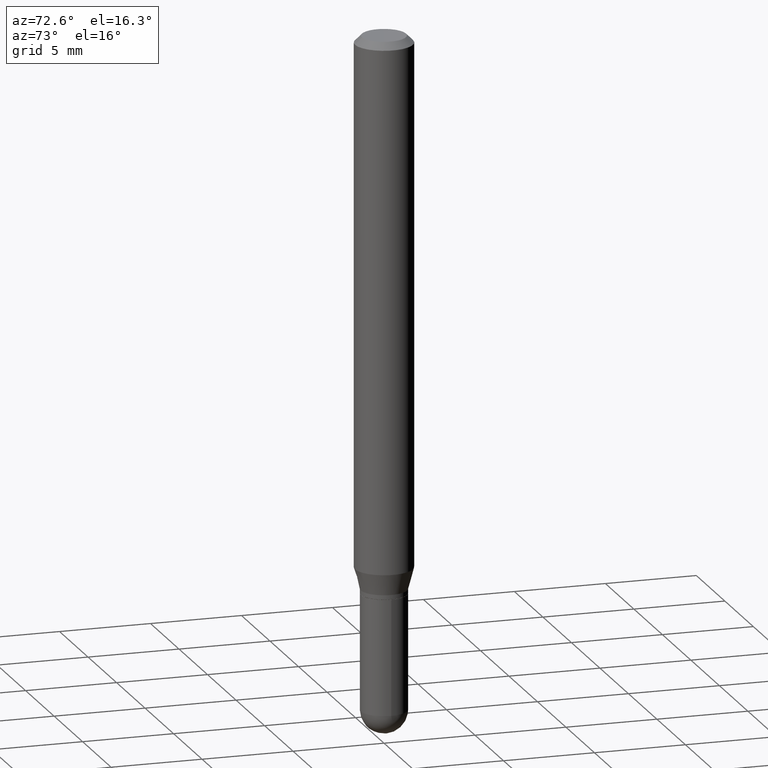
[diagram: clean part render]
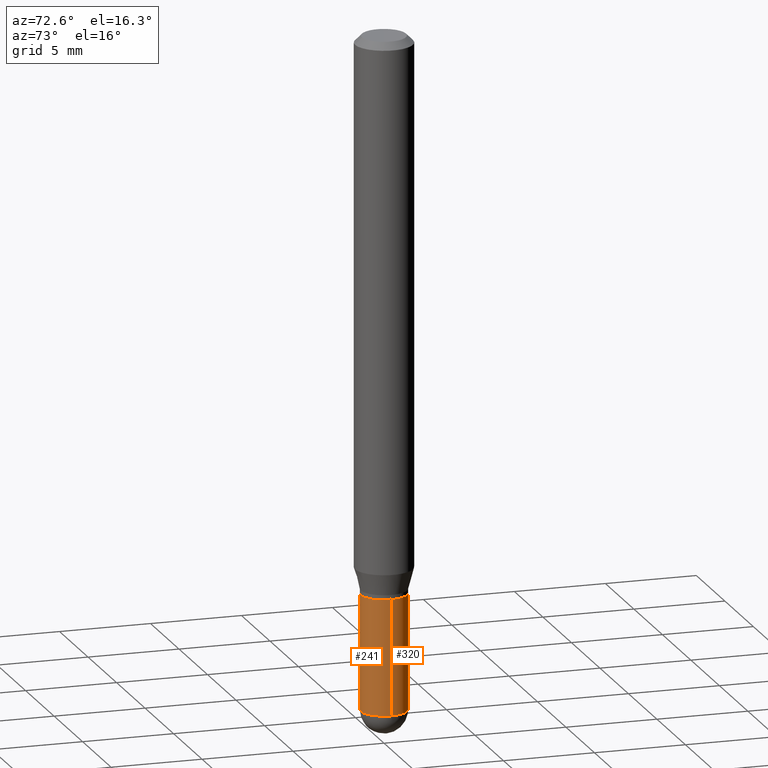
[diagram: same view with one multi-face feature highlighted, each face labeled with its STEP entity id]
A machine part, auxiliary view. The highlighted faces form ONE feature: a constant-radius fillet chain: 2 tangent blend faces with common blend radius 1.27 mm. The faces share edges in the B-rep.
Their STEP definitions:
[1] entity #241 (Cylinder):
#2 = CARTESIAN_POINT ( 'NONE',  ( 0.000000000000000000, 0.000000000000000000, 0.000000000000000000 ) ) ;
#20 = CARTESIAN_POINT ( 'NONE',  ( -3.491481338842782805E-16, -0.05000000000000513756, -1.449999999999999734 ) ) ;
#21 = EDGE_LOOP ( 'NONE', ( #497, #232, #249, #131, #335 ) ) ;
#38 = DIRECTION ( 'NONE',  ( 1.000000000000000000, -6.982962677686265922E-15, 4.876176775795936353E-29 ) ) ;
#71 = VERTEX_POINT ( 'NONE', #288 ) ;
#84 = CARTESIAN_POINT ( 'NONE',  ( 0.04999999999999999584, -3.491481338843132862E-16, 2.438088387897967896E-30 ) ) ;
#90 = DIRECTION ( 'NONE',  ( 1.000000000000000000, -6.982962677686274599E-15, 0.000000000000000000 ) ) ;
#98 = EDGE_CURVE ( 'NONE', #437, #496, #280, .T. ) ;
#131 = ORIENTED_EDGE ( 'NONE', *, *, #98, .T. ) ;
#132 = CARTESIAN_POINT ( 'NONE',  ( 0.05000000000000000278, -4.538925740496089139E-15, -1.200000000000000178 ) ) ;
#136 = CIRCLE ( 'NONE', #386, 0.05000000000000000278 ) ;
#150 = LINE ( 'NONE', #237, #401 ) ;
#168 = EDGE_CURVE ( 'NONE', #71, #496, #136, .T. ) ;
#169 = VERTEX_POINT ( 'NONE', #20 ) ;
#175 = EDGE_CURVE ( 'NONE', #231, #169, #511, .T. ) ;
#178 = AXIS2_PLACEMENT_3D ( 'NONE', #2, #389, #38 ) ;
#194 = FACE_OUTER_BOUND ( 'NONE', #21, .T. ) ;
#198 = DIRECTION ( 'NONE',  ( -2.445468806185136597E-29, 3.491481338843145583E-15, 1.000000000000000000 ) ) ;
#200 = DIRECTION ( 'NONE',  ( 1.000000000000000000, -6.982962677686275388E-15, 0.000000000000000000 ) ) ;
#214 = DIRECTION ( 'NONE',  ( 1.000000000000000000, -6.982962677686275388E-15, 0.000000000000000000 ) ) ;
#231 = VERTEX_POINT ( 'NONE', #407 ) ;
#232 = ORIENTED_EDGE ( 'NONE', *, *, #175, .T. ) ;
#237 = CARTESIAN_POINT ( 'NONE',  ( -0.04999999999999999584, 3.552713678800500634E-16, -2.459467545127452961E-30 ) ) ;
#241 = ADVANCED_FACE ( 'NONE', ( #194 ), #302, .T. ) ;
#249 = ORIENTED_EDGE ( 'NONE', *, *, #281, .T. ) ;
#250 = DIRECTION ( 'NONE',  ( -2.445468806185136877E-29, 3.491481338843145188E-15, 1.000000000000000000 ) ) ;
#259 = CARTESIAN_POINT ( 'NONE',  ( 3.545929768968448850E-29, -5.062647941322561509E-15, -1.450000000000000178 ) ) ;
#274 = DIRECTION ( 'NONE',  ( -2.445468806185136877E-29, 3.491481338843145188E-15, 1.000000000000000000 ) ) ;
#280 = LINE ( 'NONE', #84, #472 ) ;
#281 = EDGE_CURVE ( 'NONE', #169, #437, #319, .T. ) ;
#288 = CARTESIAN_POINT ( 'NONE',  ( -0.05000000000000000278, -4.270941406087117853E-15, -1.200000000000000178 ) ) ;
#289 = EDGE_CURVE ( 'NONE', #231, #71, #150, .T. ) ;
#302 = CYLINDRICAL_SURFACE ( 'NONE', #178, 0.04999999999999999584 ) ;
#319 = CIRCLE ( 'NONE', #465, 0.04999999999999999584 ) ;
#335 = ORIENTED_EDGE ( 'NONE', *, *, #168, .F. ) ;
#336 = CARTESIAN_POINT ( 'NONE',  ( 0.04999999999999999584, -4.975360907851482386E-15, -1.450000000000000178 ) ) ;
#386 = AXIS2_PLACEMENT_3D ( 'NONE', #482, #444, #90 ) ;
#389 = DIRECTION ( 'NONE',  ( -2.445468806185136597E-29, 3.491481338843145583E-15, 1.000000000000000000 ) ) ;
#392 = AXIS2_PLACEMENT_3D ( 'NONE', #259, #453, #214 ) ;
#401 = VECTOR ( 'NONE', #274, 39.37007874015748143 ) ;
#407 = CARTESIAN_POINT ( 'NONE',  ( -0.04999999999999999584, -4.270941406087117853E-15, -1.450000000000000178 ) ) ;
#437 = VERTEX_POINT ( 'NONE', #336 ) ;
#444 = DIRECTION ( 'NONE',  ( -2.445468806185136597E-29, 3.491481338843145583E-15, 1.000000000000000000 ) ) ;
#453 = DIRECTION ( 'NONE',  ( -2.445468806185136597E-29, 3.491481338843145583E-15, 1.000000000000000000 ) ) ;
#465 = AXIS2_PLACEMENT_3D ( 'NONE', #468, #198, #200 ) ;
#468 = CARTESIAN_POINT ( 'NONE',  ( 3.545929768968448850E-29, -5.062647941322561509E-15, -1.450000000000000178 ) ) ;
#472 = VECTOR ( 'NONE', #250, 39.37007874015748143 ) ;
#482 = CARTESIAN_POINT ( 'NONE',  ( 2.934562567422164701E-29, -4.189777606611775804E-15, -1.200000000000000178 ) ) ;
#496 = VERTEX_POINT ( 'NONE', #132 ) ;
#497 = ORIENTED_EDGE ( 'NONE', *, *, #289, .F. ) ;
#511 = CIRCLE ( 'NONE', #392, 0.04999999999999999584 ) ;
[2] entity #320 (Cylinder):
#3 = CARTESIAN_POINT ( 'NONE',  ( 3.545929768968448850E-29, -5.062647941322561509E-15, -1.450000000000000178 ) ) ;
#7 = DIRECTION ( 'NONE',  ( 1.000000000000000000, -6.982962677686275388E-15, 0.000000000000000000 ) ) ;
#22 = CARTESIAN_POINT ( 'NONE',  ( 2.934562567422164701E-29, -4.189777606611775804E-15, -1.200000000000000178 ) ) ;
#24 = EDGE_CURVE ( 'NONE', #496, #71, #359, .T. ) ;
#26 = AXIS2_PLACEMENT_3D ( 'NONE', #315, #323, #7 ) ;
#71 = VERTEX_POINT ( 'NONE', #288 ) ;
#84 = CARTESIAN_POINT ( 'NONE',  ( 0.04999999999999999584, -3.491481338843132862E-16, 2.438088387897967896E-30 ) ) ;
#95 = AXIS2_PLACEMENT_3D ( 'NONE', #3, #473, #203 ) ;
#98 = EDGE_CURVE ( 'NONE', #437, #496, #280, .T. ) ;
#119 = FACE_OUTER_BOUND ( 'NONE', #225, .T. ) ;
#126 = ORIENTED_EDGE ( 'NONE', *, *, #289, .T. ) ;
#132 = CARTESIAN_POINT ( 'NONE',  ( 0.05000000000000000278, -4.538925740496089139E-15, -1.200000000000000178 ) ) ;
#140 = CARTESIAN_POINT ( 'NONE',  ( 3.552713678800859565E-16, 0.04999999999999501371, -1.450000000000000400 ) ) ;
#142 = AXIS2_PLACEMENT_3D ( 'NONE', #22, #184, #145 ) ;
#145 = DIRECTION ( 'NONE',  ( 1.000000000000000000, -6.982962677686274599E-15, 0.000000000000000000 ) ) ;
#150 = LINE ( 'NONE', #237, #401 ) ;
#157 = ORIENTED_EDGE ( 'NONE', *, *, #24, .F. ) ;
#184 = DIRECTION ( 'NONE',  ( -2.445468806185136597E-29, 3.491481338843145583E-15, 1.000000000000000000 ) ) ;
#203 = DIRECTION ( 'NONE',  ( 1.000000000000000000, -6.982962677686275388E-15, 0.000000000000000000 ) ) ;
#205 = DIRECTION ( 'NONE',  ( -2.445468806185136597E-29, 3.491481338843145583E-15, 1.000000000000000000 ) ) ;
#225 = EDGE_LOOP ( 'NONE', ( #388, #126, #157, #398, #337 ) ) ;
#231 = VERTEX_POINT ( 'NONE', #407 ) ;
#237 = CARTESIAN_POINT ( 'NONE',  ( -0.04999999999999999584, 3.552713678800500634E-16, -2.459467545127452961E-30 ) ) ;
#243 = CARTESIAN_POINT ( 'NONE',  ( 0.000000000000000000, 0.000000000000000000, 0.000000000000000000 ) ) ;
#250 = DIRECTION ( 'NONE',  ( -2.445468806185136877E-29, 3.491481338843145188E-15, 1.000000000000000000 ) ) ;
#252 = EDGE_CURVE ( 'NONE', #437, #500, #292, .T. ) ;
#274 = DIRECTION ( 'NONE',  ( -2.445468806185136877E-29, 3.491481338843145188E-15, 1.000000000000000000 ) ) ;
#280 = LINE ( 'NONE', #84, #472 ) ;
#288 = CARTESIAN_POINT ( 'NONE',  ( -0.05000000000000000278, -4.270941406087117853E-15, -1.200000000000000178 ) ) ;
#289 = EDGE_CURVE ( 'NONE', #231, #71, #150, .T. ) ;
#292 = CIRCLE ( 'NONE', #26, 0.04999999999999999584 ) ;
#295 = EDGE_CURVE ( 'NONE', #500, #231, #377, .T. ) ;
#309 = CYLINDRICAL_SURFACE ( 'NONE', #360, 0.04999999999999999584 ) ;
#315 = CARTESIAN_POINT ( 'NONE',  ( 3.545929768968448850E-29, -5.062647941322561509E-15, -1.450000000000000178 ) ) ;
#320 = ADVANCED_FACE ( 'NONE', ( #119 ), #309, .T. ) ;
#323 = DIRECTION ( 'NONE',  ( -2.445468806185136597E-29, 3.491481338843145583E-15, 1.000000000000000000 ) ) ;
#336 = CARTESIAN_POINT ( 'NONE',  ( 0.04999999999999999584, -4.975360907851482386E-15, -1.450000000000000178 ) ) ;
#337 = ORIENTED_EDGE ( 'NONE', *, *, #252, .T. ) ;
#359 = CIRCLE ( 'NONE', #142, 0.05000000000000000278 ) ;
#360 = AXIS2_PLACEMENT_3D ( 'NONE', #243, #205, #390 ) ;
#377 = CIRCLE ( 'NONE', #95, 0.04999999999999999584 ) ;
#388 = ORIENTED_EDGE ( 'NONE', *, *, #295, .T. ) ;
#390 = DIRECTION ( 'NONE',  ( 1.000000000000000000, -6.982962677686265922E-15, 4.876176775795936353E-29 ) ) ;
#398 = ORIENTED_EDGE ( 'NONE', *, *, #98, .F. ) ;
#401 = VECTOR ( 'NONE', #274, 39.37007874015748143 ) ;
#407 = CARTESIAN_POINT ( 'NONE',  ( -0.04999999999999999584, -4.270941406087117853E-15, -1.450000000000000178 ) ) ;
#437 = VERTEX_POINT ( 'NONE', #336 ) ;
#472 = VECTOR ( 'NONE', #250, 39.37007874015748143 ) ;
#473 = DIRECTION ( 'NONE',  ( -2.445468806185136597E-29, 3.491481338843145583E-15, 1.000000000000000000 ) ) ;
#496 = VERTEX_POINT ( 'NONE', #132 ) ;
#500 = VERTEX_POINT ( 'NONE', #140 ) ;